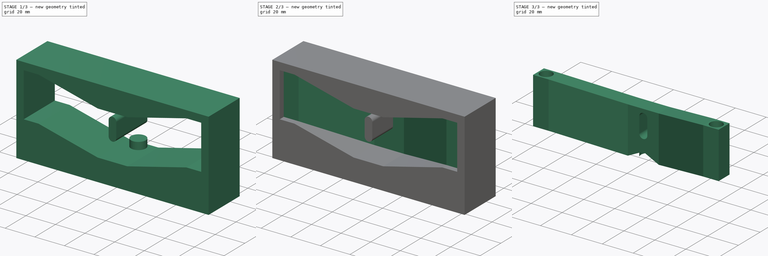
[diagram: build sequence overview — one tinted view per stage of 3, left to right]
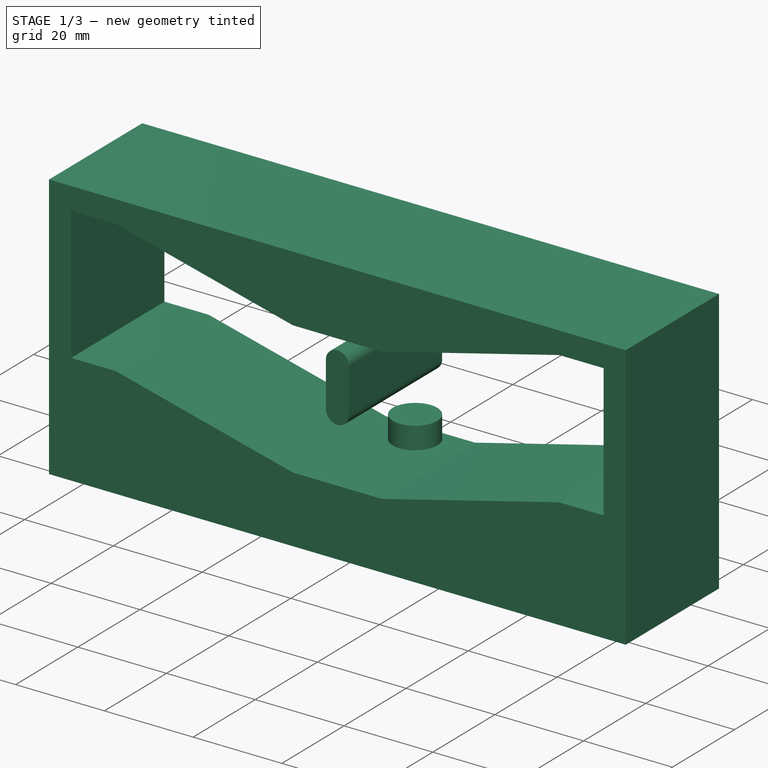
[diagram: stage 1 of 3 — iso view after this stage's code; geometry added in this stage tinted green]
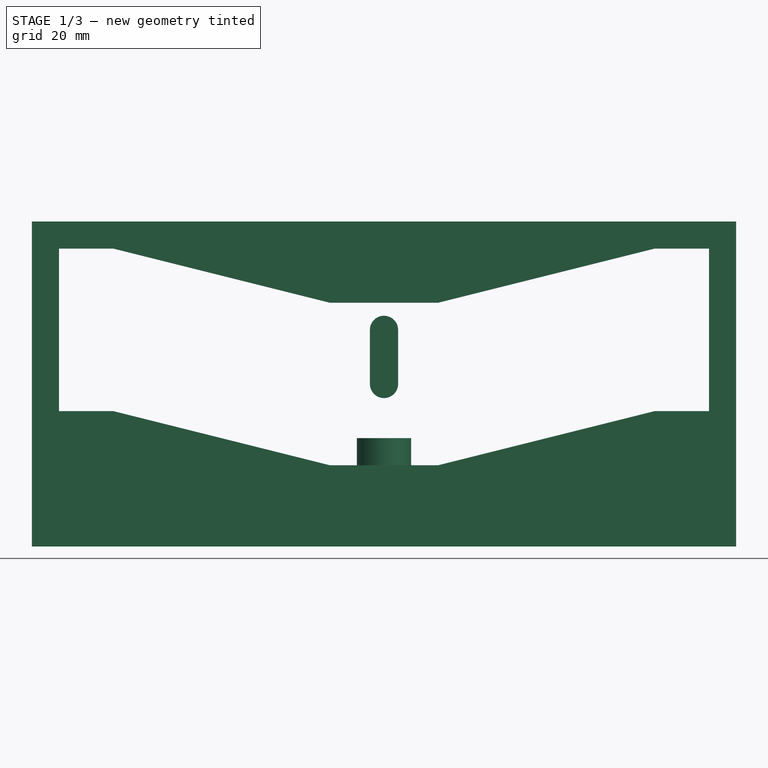
[diagram: stage 1 of 3 — front view after this stage's code; geometry added in this stage tinted green]
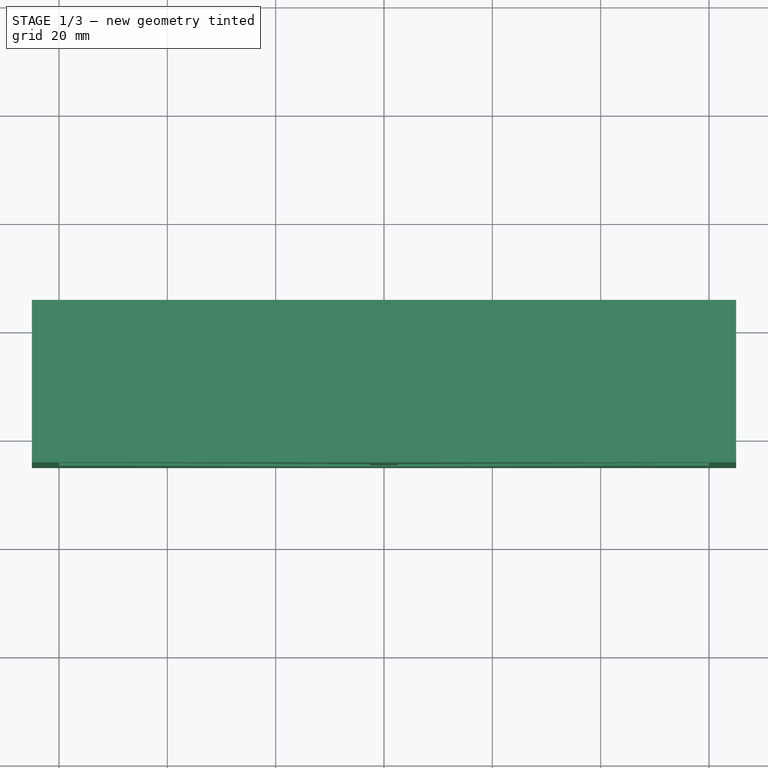
[diagram: stage 1 of 3 — top view after this stage's code; geometry added in this stage tinted green]
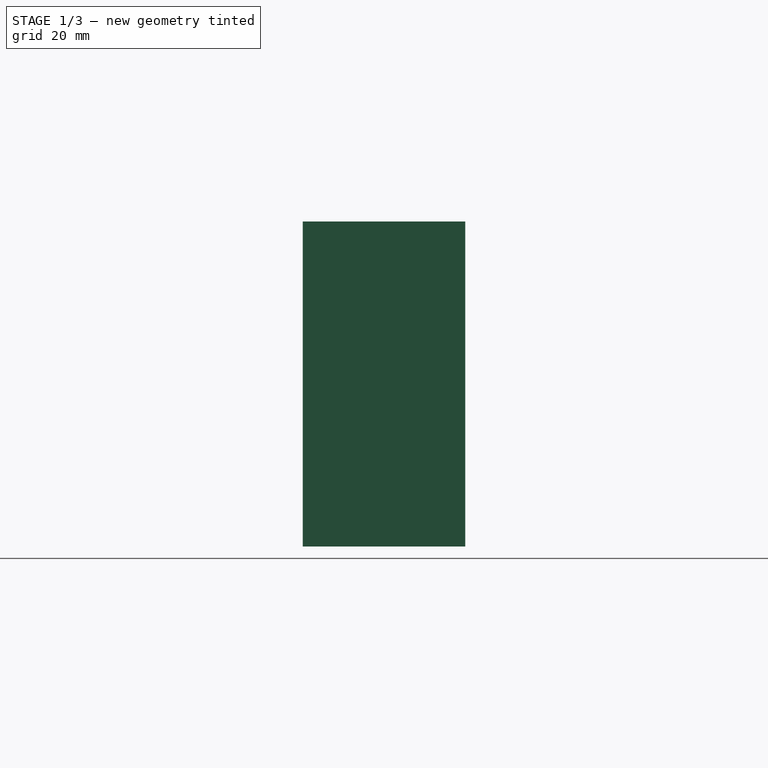
[diagram: stage 1 of 3 — right view after this stage's code; geometry added in this stage tinted green]
FCSTD DOCUMENT  (FreeCAD 0.22R38467 (Git))
Label: Carriage
objects: PartDesign::Line×4, Sketcher::SketchObject×3, Part::Extrusion×3, Part::Cut×2, App::Link×2, Image::ImagePlane×1, PartDesign::CoordinateSystem×1, App::Part×1
note: 16 computed .brp shape members not serialized (recipe doc carries the construction recipe); baked Part::Feature solids carry a one-line shape summary decoded from their .brp
EXTERNAL_REF file=LM5UU Bush.FCStd obj=Body

FEATURE [Sketcher::SketchObject] Sketch004  label="Front Profile"
  ArcFitTolerance = 1e-06
  AttachmentOffset = pos=(0,0,-10) rot=(0,0,1;0rad)
  AttachmentSupport = -> [Extrude003]
  FullyConstrained = true
  MakeInternals = false
  MapMode = 5
  Placement = pos=(0,5,-2.2e-15) rot=(1,0,0;1.5708rad)
  sketch-geometry (20):
    g0: ArcOfCircle CenterX=0 CenterY=25 CenterZ=0 NormalX=0 NormalY=0 NormalZ=1 AngleXU=0 Radius=2.6 StartAngle=5e-16 EndAngle=3.14159
    g1: ArcOfCircle CenterX=-1e-16 CenterY=15 CenterZ=0 NormalX=0 NormalY=0 NormalZ=1 AngleXU=0 Radius=2.6 StartAngle=3.14159 EndAngle=6.28319
    g2: LineSegment StartX=2.6 StartY=25 StartZ=0 EndX=2.6 EndY=15 EndZ=0
    g3: LineSegment StartX=-2.6 StartY=25 StartZ=0 EndX=-2.6 EndY=15 EndZ=0
    g4: LineSegment StartX=-10 StartY=30 StartZ=0 EndX=10 EndY=30 EndZ=0
    g5: LineSegment StartX=50 StartY=40 StartZ=0 EndX=60 EndY=40 EndZ=0
    g6: LineSegment StartX=60 StartY=40 StartZ=0 EndX=60 EndY=10 EndZ=0
    g7: LineSegment StartX=10 StartY=30 StartZ=0 EndX=50 EndY=40 EndZ=0
    g8: LineSegment StartX=-10 StartY=0 StartZ=0 EndX=10 EndY=0 EndZ=0
    g9: LineSegment StartX=10 StartY=0 StartZ=0 EndX=50 EndY=10 EndZ=0
    g10: LineSegment StartX=50 StartY=10 StartZ=0 EndX=60 EndY=10 EndZ=0
    g11: LineSegment StartX=-50 StartY=40 StartZ=0 EndX=-60 EndY=40 EndZ=0
    g12: LineSegment StartX=-60 StartY=40 StartZ=0 EndX=-60 EndY=10 EndZ=0
    g13: LineSegment StartX=-10 StartY=30 StartZ=0 EndX=-50 EndY=40 EndZ=0
    g14: LineSegment StartX=-10 StartY=0 StartZ=0 EndX=-50 EndY=10 EndZ=0
    g15: LineSegment StartX=-50 StartY=10 StartZ=0 EndX=-60 EndY=10 EndZ=0
    g16: LineSegment StartX=-65 StartY=45 StartZ=0 EndX=-65 EndY=-15 EndZ=0
    g17: LineSegment StartX=-65 StartY=-15 StartZ=0 EndX=65 EndY=-15 EndZ=0
    g18: LineSegment StartX=65 StartY=-15 StartZ=0 EndX=65 EndY=45 EndZ=0
    g19: LineSegment StartX=65 StartY=45 StartZ=0 EndX=-65 EndY=45 EndZ=0
  constraints (52):
    c: Tangent(g0,g2) = 1.5708
    c: Tangent(g0,g3) = -1.5708
    c: Tangent(g1,g2) = 1.5708
    c: Equal(g0,g1)
    c: Vertical(g3)
    c: DistanceX(g0,g0) = 5.2
    c: DistanceY(g1,g0) = 10
    c: PointOnObject(g1,g-2)
    c: DistanceY(g-1,g1) = 15
    c: Coincident(g3,g1)
    c: PointOnObject(g0,g-2)
    c: Coincident(g6,g5)
    c: Vertical(g6)
    c: Coincident(g7,g4)
    c: Coincident(g7,g5)
    c: PointOnObject(g8,g-1)
    c: Coincident(g9,g8)
    c: Coincident(g10,g9)
    c: Coincident(g10,g6)
    c: Horizontal(g10)
    c: DistanceY(g6,g6) = 30
    c: Distance(g5,g5) = 10
    c: Distance(g8,g8) = 20
    c: Vertical(g8,g4)
    c: Symmetric(g5,g11,g-2)
    c: Symmetric(g5,g11,g-2)
    c: Symmetric(g6,g12,g-2)
    c: Symmetric(g6,g12,g-2)
    c: Symmetric(g7,g13,g-2)
    c: Symmetric(g7,g13,g-2)
    c: Symmetric(g9,g14,g-2)
    c: Symmetric(g9,g14,g-2)
    c: Symmetric(g10,g15,g-2)
    c: Symmetric(g10,g15,g-2)
    c: Equal(g10,g5)
    c: DistanceY(g11) = 40
    c: Horizontal(g11)
    c: DistanceX(g12) = -60
    c: Coincident(g14,g8)
    c: Coincident(g4,g13)
    c: DistanceY(g4) = 30
    c: Coincident(g16,g17)
    c: Coincident(g17,g18)
    c: Coincident(g18,g19)
    c: Coincident(g19,g16)
    c: Vertical(g16)
    c: Vertical(g18)
    c: Horizontal(g17)
    c: Horizontal(g19)
    c: Symmetric(g17,g16,g1)
    c: DistanceY(g16,g16) = 60
    c: DistanceX(g17,g17) = 130
FEATURE [Part::Extrusion] Extrude004  label="Front Cutter"
  Base = -> Sketch004
  Dir = (0,-1,2e-16)
  DirMode = 2
  FaceMakerClass = Part::FaceMakerBullseye
  FaceMakerMode = 3
  LengthFwd = 30
  LengthRev = 0
  Solid = true
  Symmetric = false
FEATURE [Sketcher::SketchObject] Sketch005  label="Magnet Mount Hole Profile"
  ArcFitTolerance = 1e-06
  AttachmentSupport = -> [Cut002]
  FullyConstrained = true
  MakeInternals = false
  MapMode = 5
  Placement = pos=(0,0,0) rot=(1,0,0;3.14159rad)
  sketch-geometry (1):
    g0: Circle CenterX=0 CenterY=0 CenterZ=0 NormalX=0 NormalY=0 NormalZ=1 AngleXU=0 Radius=5
  constraints (2):
    c: Diameter(g0) = 10
    c: Coincident(g0,g-1)
FEATURE [Part::Extrusion] Extrude005  label="Magnet Mount Slot"
  Base = -> Sketch005
  Dir = (0,0,-1)
  DirMode = 2
  FaceMakerClass = Part::FaceMakerBullseye
  FaceMakerMode = 3
  LengthFwd = 5
  LengthRev = 0
  Reversed = true
  Solid = true
  Symmetric = false
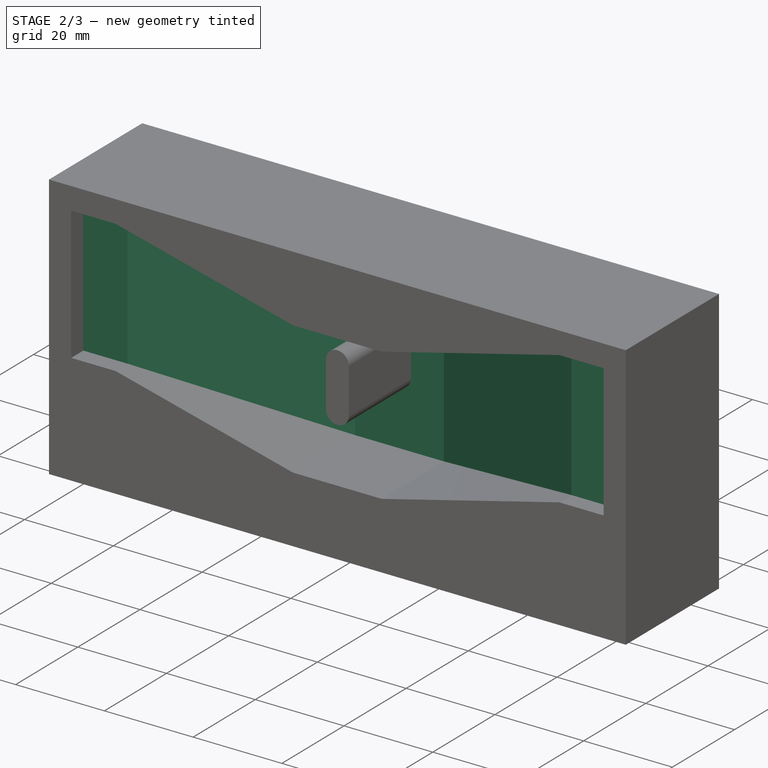
[diagram: stage 2 of 3 — iso view after this stage's code; geometry added in this stage tinted green]
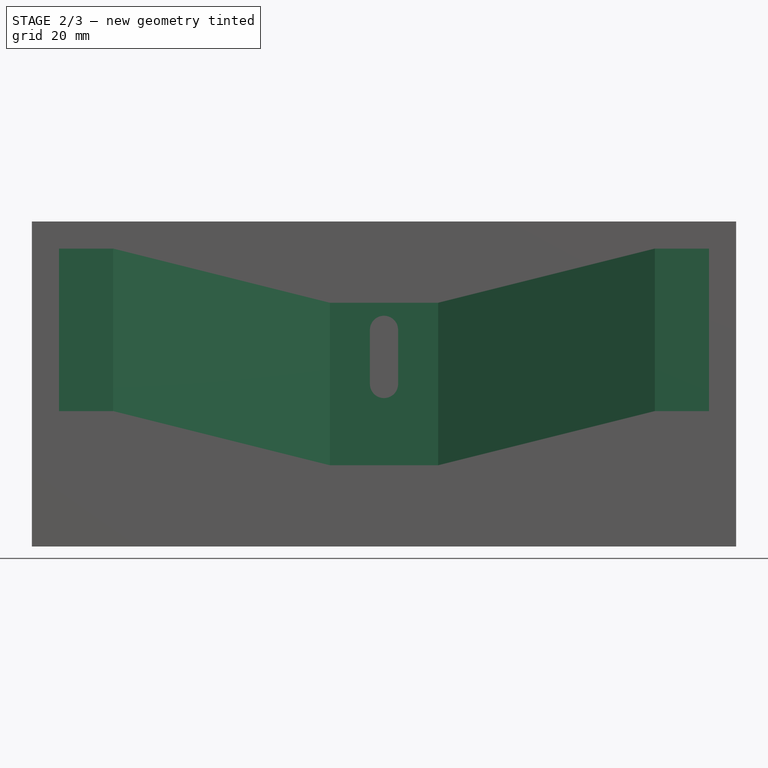
[diagram: stage 2 of 3 — front view after this stage's code; geometry added in this stage tinted green]
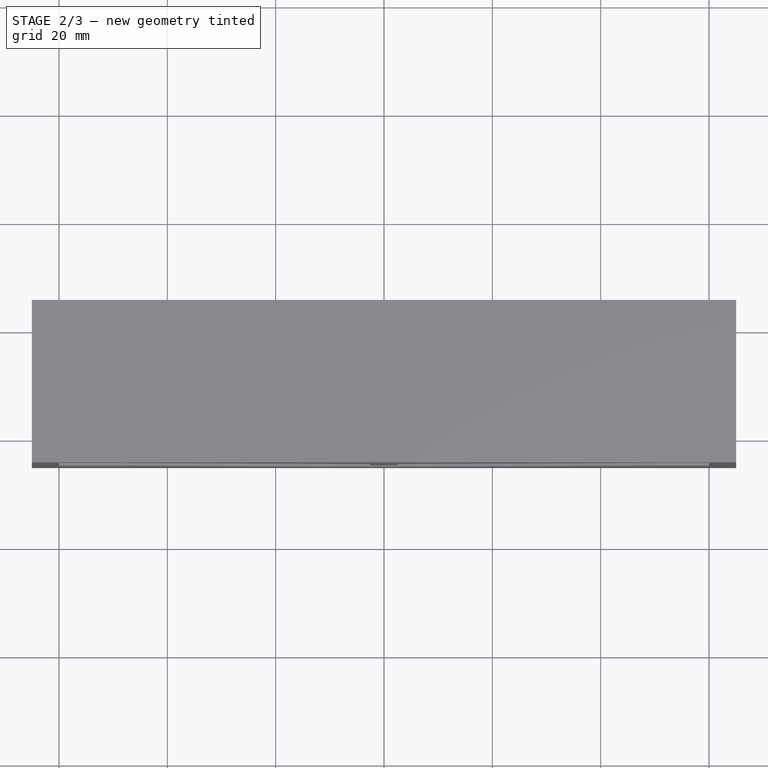
[diagram: stage 2 of 3 — top view after this stage's code; geometry added in this stage tinted green]
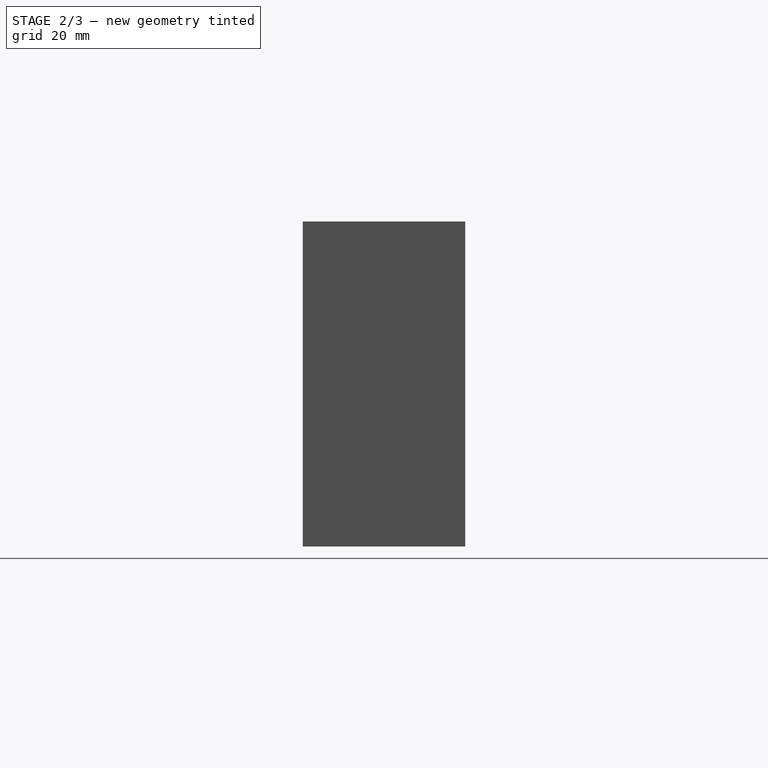
[diagram: stage 2 of 3 — right view after this stage's code; geometry added in this stage tinted green]
FEATURE [Image::ImagePlane] front
  Placement = pos=(21,1,-24) rot=(1,0,0;1.5708rad)
  XSize = 323.857
  YSize = 216.722
FEATURE [PartDesign::CoordinateSystem] LCS_Origin001
  AttacherType = Attacher::AttachEngine3D
  AttachmentSupport = -> [X_Axis001]
  MapMode = 2
FEATURE [Sketcher::SketchObject] Sketch003  label="Top Profile"
  ArcFitTolerance = 1e-06
  FullyConstrained = true
  MakeInternals = false
  sketch-geometry (18):
    g0: LineSegment [constr] StartX=-10 StartY=5 StartZ=0 EndX=-10 EndY=-5 EndZ=0
    g1: LineSegment StartX=-10 StartY=-5 StartZ=0 EndX=10 EndY=-5 EndZ=0
    g2: LineSegment [constr] StartX=10 StartY=-5 StartZ=0 EndX=10 EndY=5 EndZ=0
    g3: LineSegment StartX=10 StartY=5 StartZ=0 EndX=-10 EndY=5 EndZ=0
    g4: LineSegment StartX=-60 StartY=-11.095 StartZ=0 EndX=-60 EndY=-21.095 EndZ=0
    g5: LineSegment StartX=-60 StartY=-21.095 StartZ=0 EndX=-50 EndY=-21.095 EndZ=0
    g6: LineSegment [constr] StartX=-50 StartY=-21.095 StartZ=0 EndX=-50 EndY=-11.095 EndZ=0
    g7: LineSegment StartX=-50 StartY=-11.095 StartZ=0 EndX=-60 EndY=-11.095 EndZ=0
    g8: LineSegment [constr] StartX=50 StartY=-11.095 StartZ=0 EndX=50 EndY=-21.095 EndZ=0
    g9: LineSegment StartX=50 StartY=-21.095 StartZ=0 EndX=60 EndY=-21.095 EndZ=0
    g10: LineSegment StartX=60 StartY=-21.095 StartZ=0 EndX=60 EndY=-11.095 EndZ=0
    g11: LineSegment StartX=60 StartY=-11.095 StartZ=0 EndX=50 EndY=-11.095 EndZ=0
    g12: LineSegment StartX=50 StartY=-11.095 StartZ=0 EndX=10 EndY=5 EndZ=0
    g13: LineSegment StartX=50 StartY=-21.095 StartZ=0 EndX=10 EndY=-5 EndZ=0
    g14: LineSegment StartX=-10 StartY=-5 StartZ=0 EndX=-50 EndY=-21.095 EndZ=0
    g15: LineSegment StartX=-50 StartY=-11.095 StartZ=0 EndX=-10 EndY=5 EndZ=0
    g16: Circle CenterX=-55 CenterY=-16.095 CenterZ=0 NormalX=0 NormalY=0 NormalZ=1 AngleXU=0 Radius=4
    g17: Circle CenterX=55 CenterY=-16.095 CenterZ=0 NormalX=0 NormalY=0 NormalZ=1 AngleXU=0 Radius=4
  constraints (46):
    c: Coincident(g0,g1)
    c: Coincident(g1,g2)
    c: Coincident(g2,g3)
    c: Coincident(g3,g0)
    c: Vertical(g0)
    c: Vertical(g2)
    c: Horizontal(g1)
    c: Horizontal(g3)
    c: Distance(g0,g2) = 20
    c: Distance(g1,g3) = 10
    c: Coincident(g4,g5)
    c: Coincident(g5,g6)
    c: Coincident(g6,g7)
    c: Coincident(g7,g4)
    c: Vertical(g4)
    c: Vertical(g6)
    c: Horizontal(g5)
    c: Horizontal(g7)
    c: Coincident(g8,g9)
    c: Coincident(g9,g10)
    c: Coincident(g10,g11)
    c: Coincident(g11,g8)
    c: Vertical(g8)
    c: Vertical(g10)
    c: Horizontal(g9)
    c: Horizontal(g11)
    c: Horizontal(g6,g8)
    c: Symmetric(g9,g4,g-2)
    c: DistanceX(g9) = 60
    c: Symmetric(g0,g2,g-1)
    c: Equal(g11,g10)
    c: Equal(g4,g7)
    c: Equal(g8,g2)
    c: Equal(g2,g6)
    c: Coincident(g12,g8)
    c: Coincident(g12,g2)
    c: Coincident(g13,g8)
    c: Coincident(g13,g1)
    c: Coincident(g14,g0)
    c: Coincident(g14,g5)
    c: Coincident(g15,g6)
    c: Coincident(g15,g0)
    c: Symmetric(g4,g5,g16)
    c: Radius(g16) = 4
    c: Symmetric(g8,g9,g17)
    c: Equal(g17,g16)
FEATURE [Part::Extrusion] Extrude003  label="Pad"
  Base = -> Sketch003
  Dir = (0,0,1)
  DirMode = 2
  FaceMakerClass = Part::FaceMakerBullseye
  FaceMakerMode = 3
  LengthFwd = 40
  LengthRev = 0
  Solid = true
  Symmetric = false
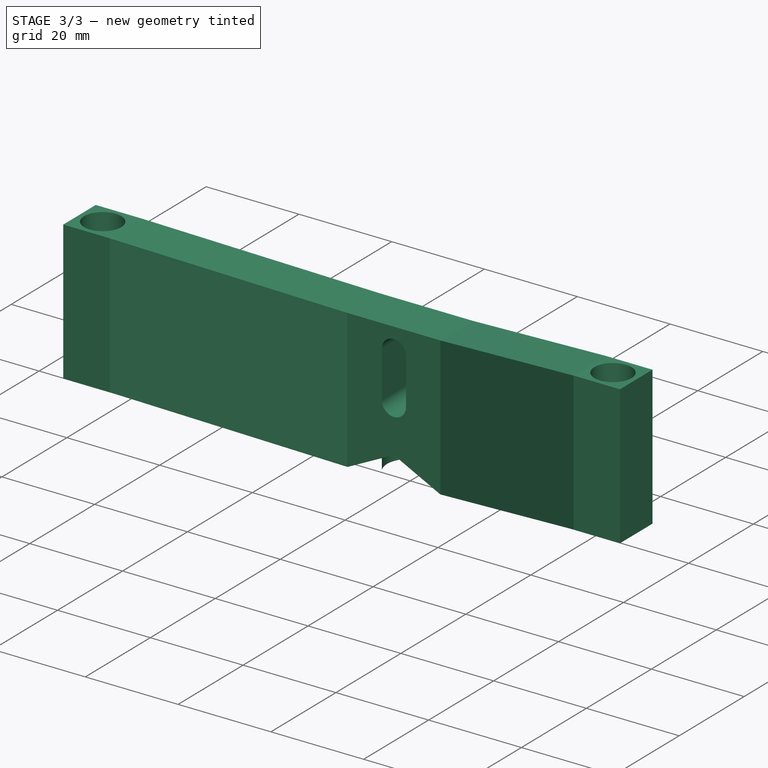
[diagram: stage 3 of 3 — iso view after this stage's code; geometry added in this stage tinted green]
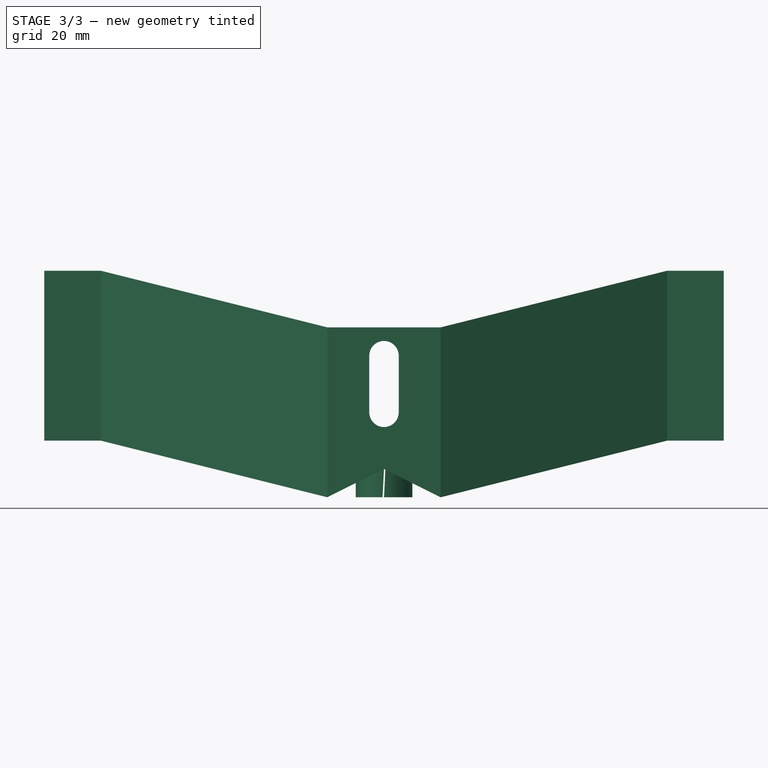
[diagram: stage 3 of 3 — front view after this stage's code; geometry added in this stage tinted green]
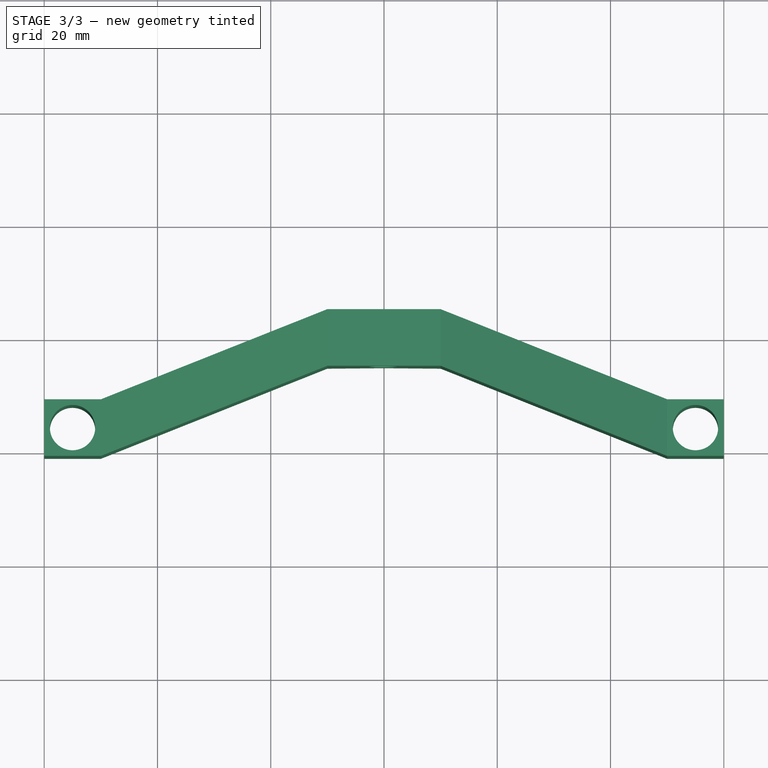
[diagram: stage 3 of 3 — top view after this stage's code; geometry added in this stage tinted green]
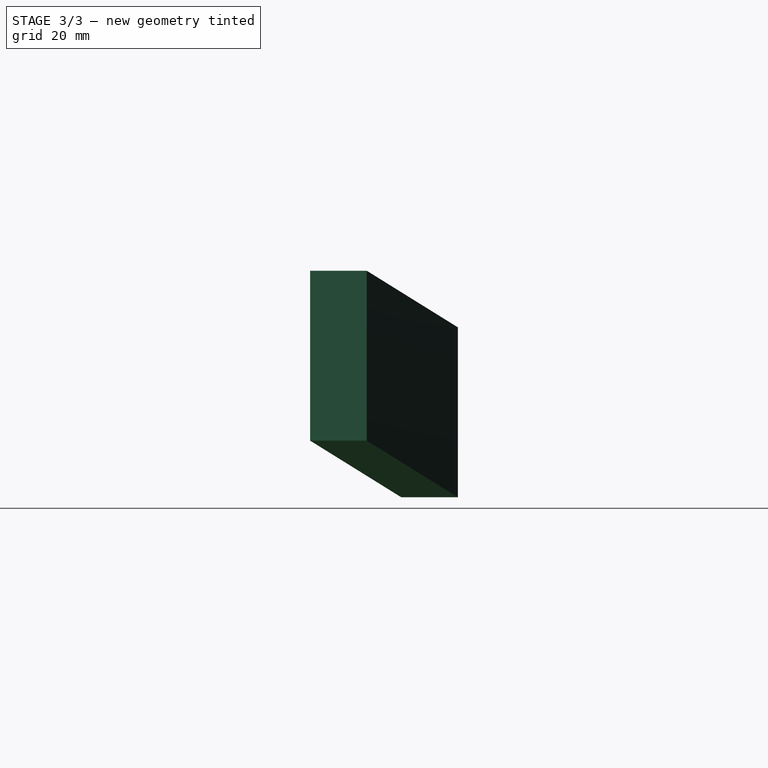
[diagram: stage 3 of 3 — right view after this stage's code; geometry added in this stage tinted green]
FEATURE [Part::Cut] Cut002
  Base = -> Extrude003
  Tool = -> Extrude004
FEATURE [Part::Cut] Cut003
  Base = -> Cut002
  Tool = -> Extrude005
FEATURE [PartDesign::Line] HoleAxis_1  label="Bearing AP"
  AttacherType = Attacher::AttachEngineLine
  AttachmentOffset = pos=(0,-3,-7) rot=(0,0,1;0rad)
  AttachmentSupport = -> [Cut003]
  Length = 3.52267
  MapMode = 19
  Placement = pos=(3e-15,12,22) rot=(1,0,0;1.5708rad)
  ResizeMode = 1
FEATURE [PartDesign::Line] HoleAxis_2  label="Magnet AP"
  AttacherType = Attacher::AttachEngineLine
  AttachmentOffset = pos=(0,0,0) rot=(1,0,0;1.5708rad)
  AttachmentSupport = -> [Cut003]
  Length = 7.04534
  MapMode = 19
  Placement = pos=(0,0,0) rot=(-0.57735,0.57735,-0.57735;2.0944rad)
  ResizeMode = 1
FEATURE [PartDesign::Line] HoleAxis_3  label="Top AP"
  AttacherType = Attacher::AttachEngineLine
  AttachmentOffset = pos=(0,0,11.5) rot=(0,0,1;1.5708rad)
  AttachmentSupport = -> [Cut003]
  Length = 3.66358
  MapMode = 19
  Placement = pos=(-55,-16.095,-1.5) rot=(-0.707107,0.707107,0;3.14159rad)
  ResizeMode = 1
FEATURE [PartDesign::Line] HoleAxis_4  label="Bottom AP"
  AttacherType = Attacher::AttachEngineLine
  AttachmentOffset = pos=(0,0,-42.75) rot=(0,0,1;1.5708rad)
  AttachmentSupport = -> [Cut003]
  Length = 3.66358
  MapMode = 19
  Placement = pos=(55,-16.095,-2.75) rot=(0,0,1;1.5708rad)
  ResizeMode = 1
FEATURE [App::Link] Link  label="Left LM Bearing"
  LinkPlacement = pos=(-55,-16,25) rot=(0,0,1;0rad)
  LinkedObject = -> <external LM5UU Bush.FCStd>#Body
  Placement = pos=(-55,-16,25) rot=(0,0,1;0rad)
FEATURE [App::Link] Link001  label="Right LM Bearing"
  LinkPlacement = pos=(55,-16,25) rot=(0,0,1;0rad)
  LinkedObject = -> <external LM5UU Bush.FCStd>#Body
  Placement = pos=(55,-16,25) rot=(0,0,1;0rad)
FEATURE [App::Part] Carriage_2  label="Carriage"
  Group = -> [LCS_Origin001,Extrude004,Sketch005,Extrude003,Sketch003,Sketch004,Cut002,Extrude005,Cut003,HoleAxis_2,HoleAxis_3,HoleAxis_4,HoleAxis_1,Link,Link001]
  Origin = -> Origin001
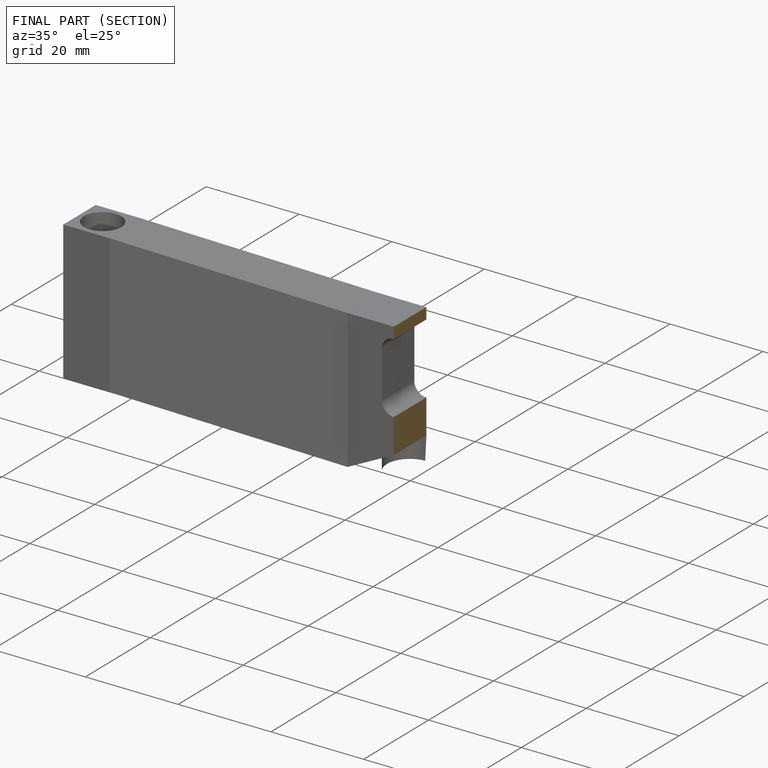
[diagram: finished part — half-section view (interior)]
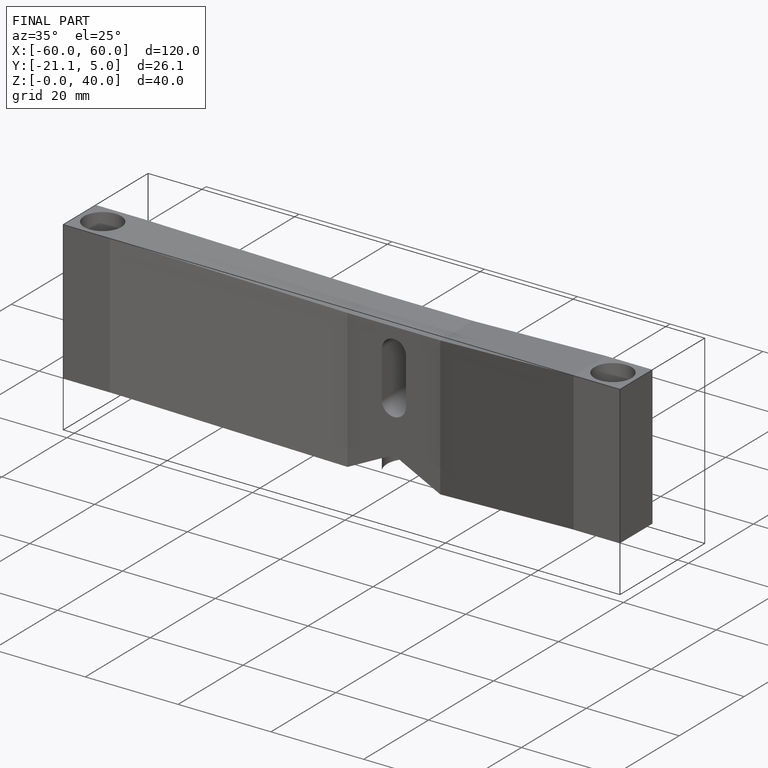
[diagram: finished part — iso view with bounding-box wireframe]
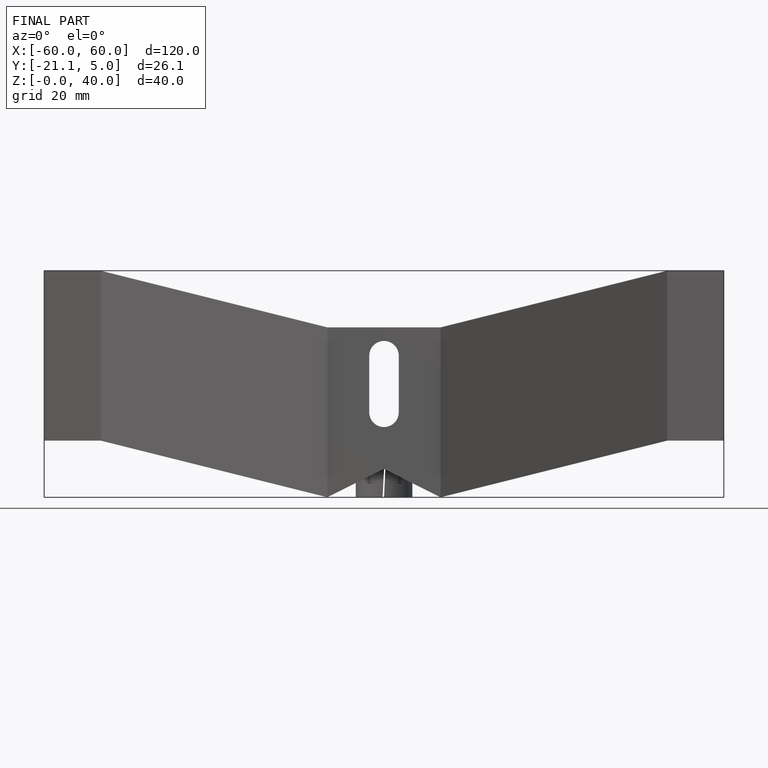
[diagram: finished part — front view with bounding-box wireframe]
